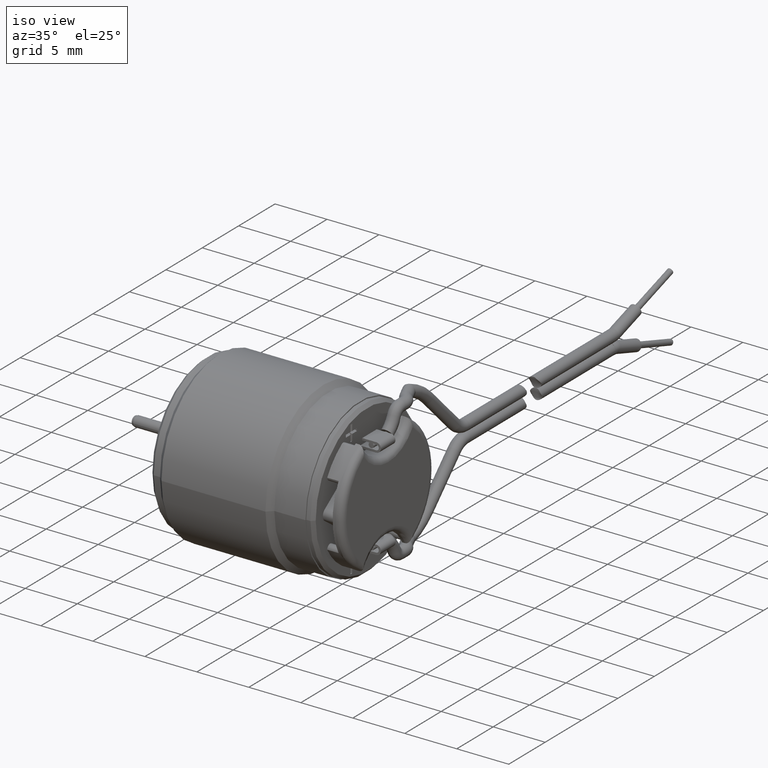
[diagram: clean part render]
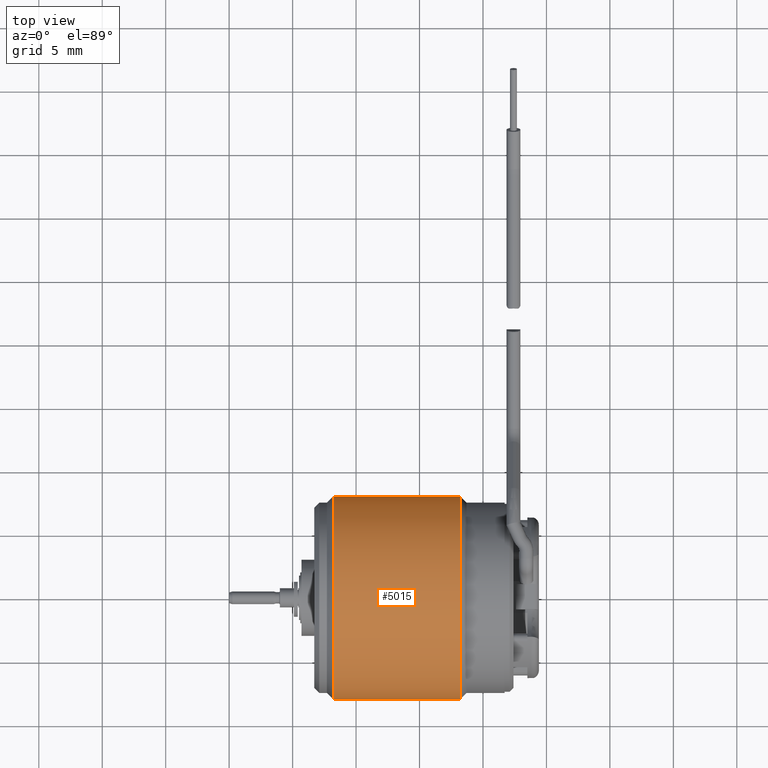
[diagram: tour spotlight — one face highlighted and labeled with its STEP entity id]
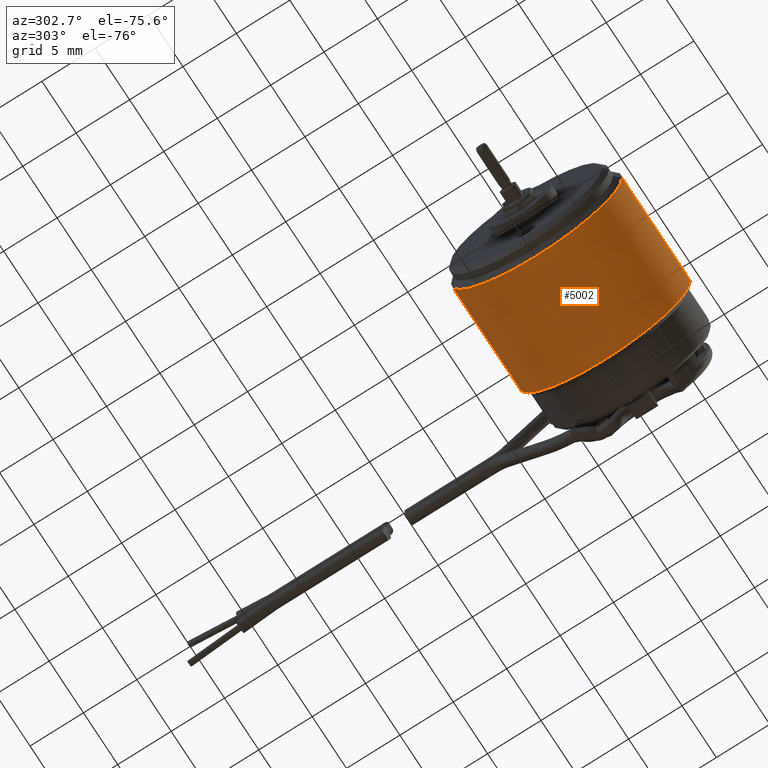
[diagram: tour spotlight — one face highlighted and labeled with its STEP entity id]
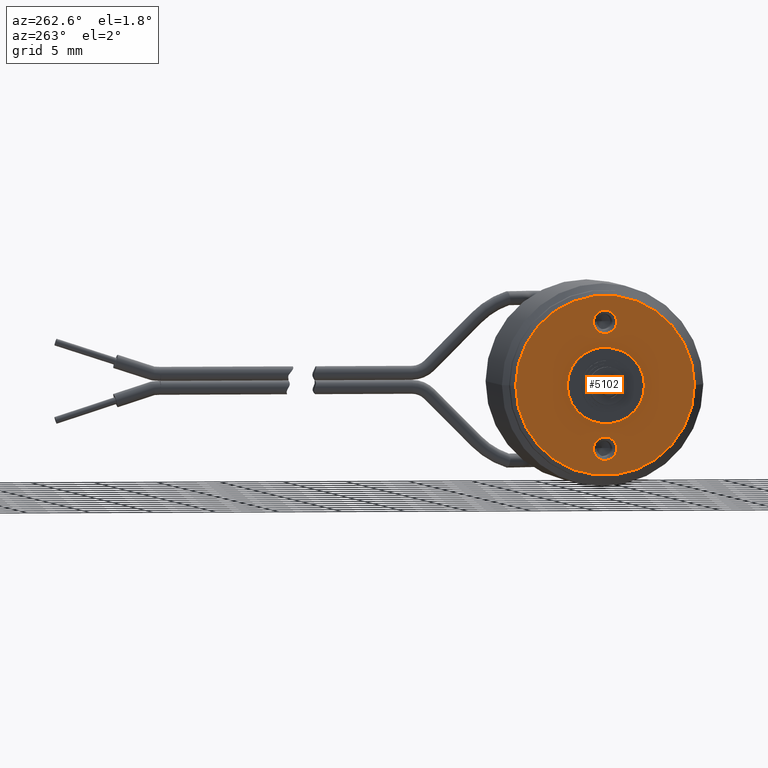
[diagram: tour spotlight — one face highlighted and labeled with its STEP entity id]
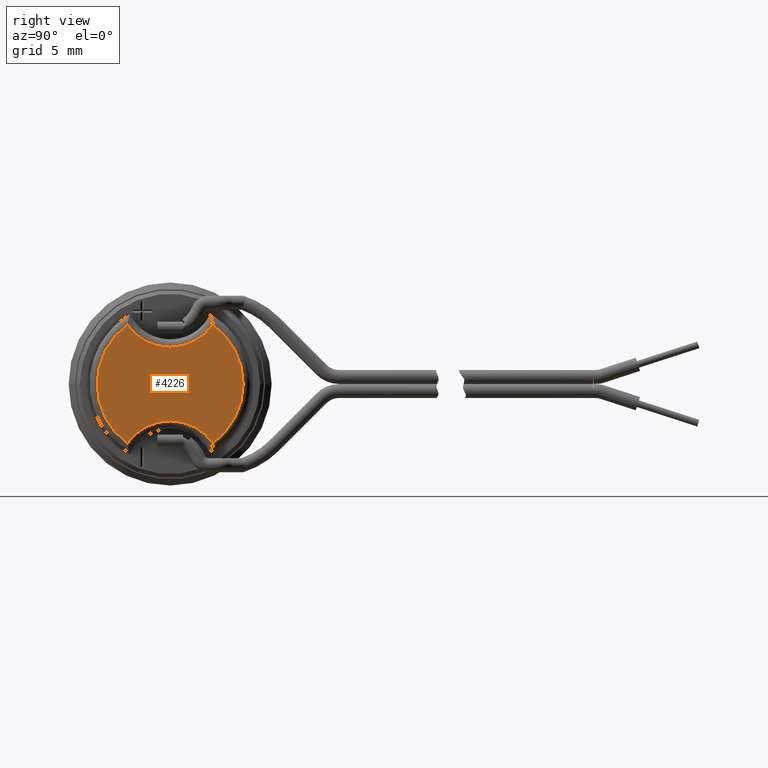
[diagram: tour spotlight — one face highlighted and labeled with its STEP entity id]
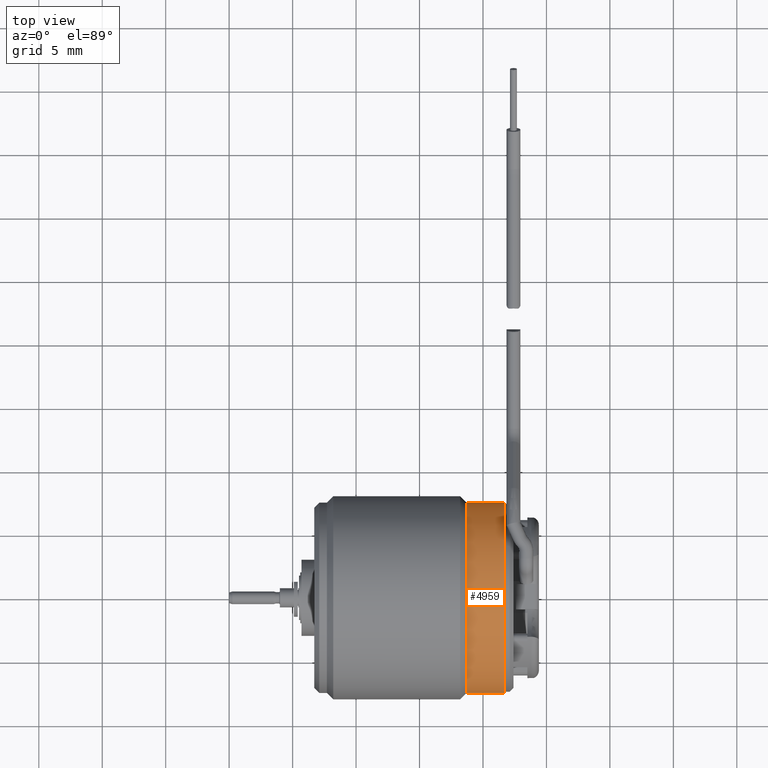
[diagram: tour spotlight — one face highlighted and labeled with its STEP entity id]
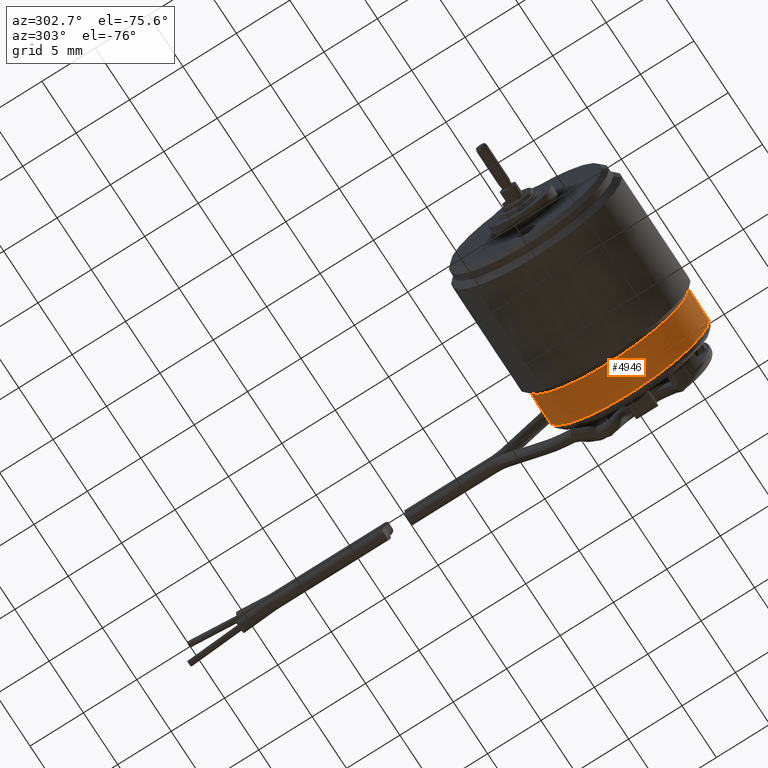
[diagram: tour spotlight — one face highlighted and labeled with its STEP entity id]
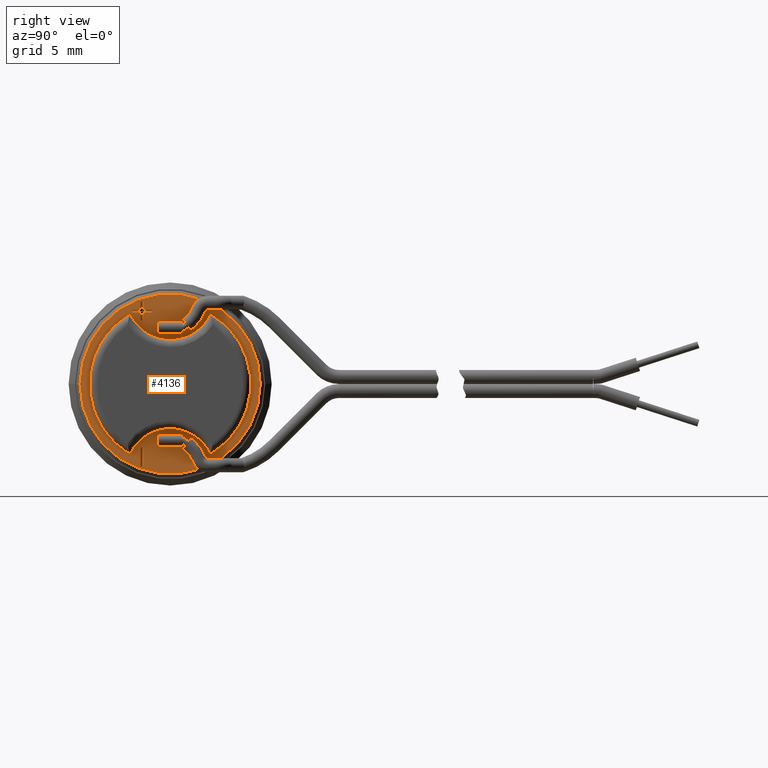
[diagram: tour spotlight — one face highlighted and labeled with its STEP entity id]
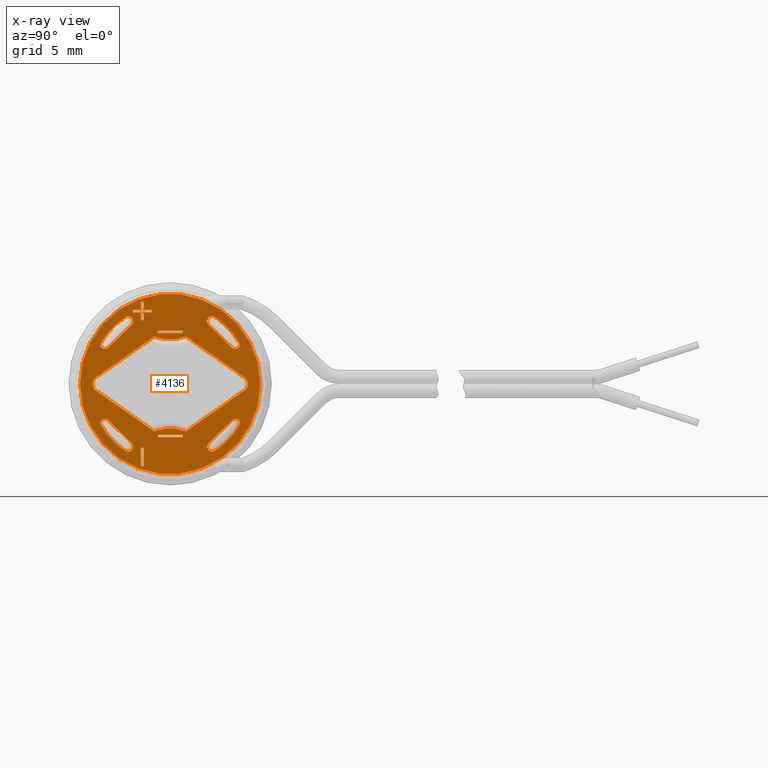
[diagram: x-ray of the same camera — body ghosted, this tour face saturated]
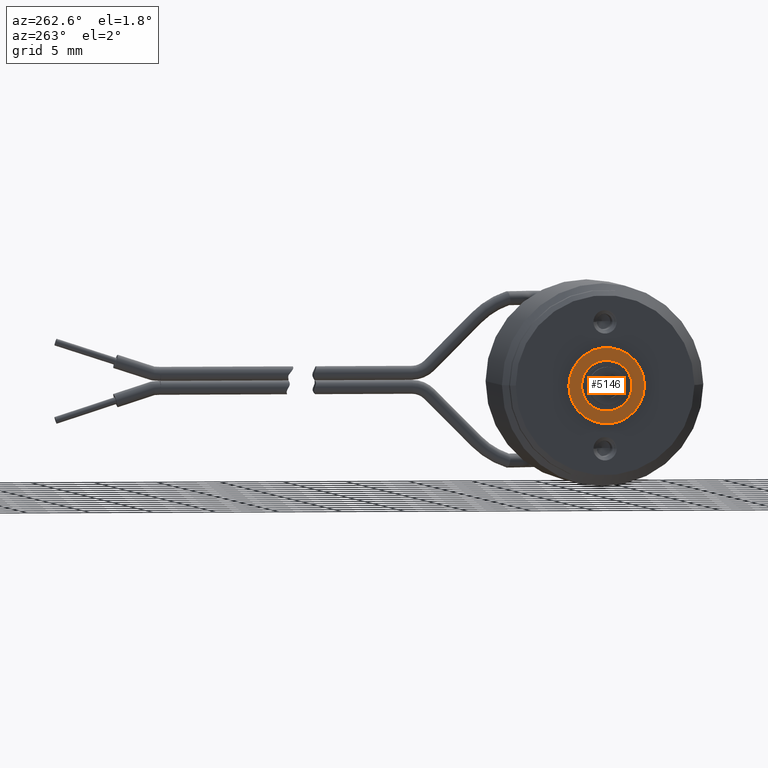
[diagram: tour spotlight — one face highlighted and labeled with its STEP entity id]
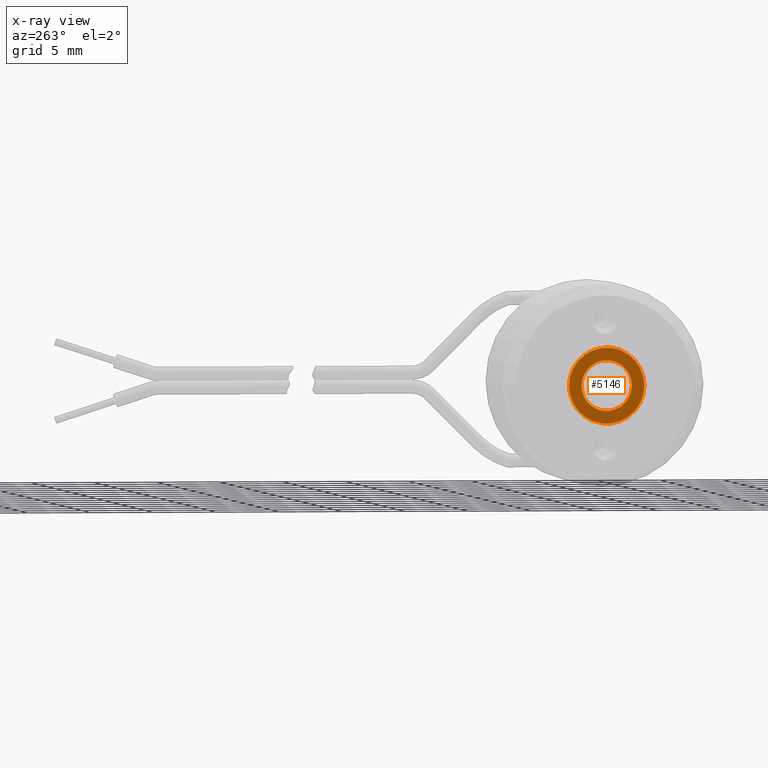
[diagram: x-ray of the same camera — body ghosted, this tour face saturated]
A machine part: a face-by-face anatomy tour. The part has 254 B-rep faces; the first image is the clean iso view, then the 8 largest visible faces are spotlighted one at a time (largest first), each with its STEP entity span.

Face 1 — top view, entity #5015. In plain terms, the highlighted cylindrical surface (partial cylindrical patch) has radius 8 mm, axis along (-1, 0, 0).
Definition (entity closure, byte-faithful):
#1562=DIRECTION('',(-1.E0,0.E0,0.E0));
#1563=VECTOR('',#1562,1.E1);
#1564=CARTESIAN_POINT('',(1.82E1,8.E0,0.E0));
#1565=LINE('',#1564,#1563);
#1566=CARTESIAN_POINT('',(1.82E1,0.E0,0.E0));
#1567=DIRECTION('',(1.E0,0.E0,0.E0));
#1568=DIRECTION('',(0.E0,1.E0,0.E0));
#1569=AXIS2_PLACEMENT_3D('',#1566,#1567,#1568);
#1571=DIRECTION('',(-1.E0,0.E0,0.E0));
#1572=VECTOR('',#1571,1.E1);
#1573=CARTESIAN_POINT('',(1.82E1,-8.E0,0.E0));
#1574=LINE('',#1573,#1572);
#1579=CARTESIAN_POINT('',(8.2E0,0.E0,0.E0));
#1580=DIRECTION('',(1.E0,0.E0,0.E0));
#1581=DIRECTION('',(0.E0,1.E0,0.E0));
#1582=AXIS2_PLACEMENT_3D('',#1579,#1580,#1581);
#2541=CARTESIAN_POINT('',(1.82E1,8.E0,0.E0));
#2542=VERTEX_POINT('',#2541);
#2543=CARTESIAN_POINT('',(8.2E0,8.E0,0.E0));
#2544=VERTEX_POINT('',#2543);
#2571=CARTESIAN_POINT('',(1.82E1,-8.E0,0.E0));
#2572=VERTEX_POINT('',#2571);
#2573=CARTESIAN_POINT('',(8.2E0,-8.E0,0.E0));
#2574=VERTEX_POINT('',#2573);
#5003=CARTESIAN_POINT('',(2.562E1,0.E0,0.E0));
#5004=DIRECTION('',(-1.E0,0.E0,0.E0));
#5005=DIRECTION('',(0.E0,1.E0,0.E0));
#5006=AXIS2_PLACEMENT_3D('',#5003,#5004,#5005);
#5007=CYLINDRICAL_SURFACE('',#5006,8.E0);
#5008=ORIENTED_EDGE('',*,*,#4993,.F.);
#5009=ORIENTED_EDGE('',*,*,#4970,.T.);
#5010=ORIENTED_EDGE('',*,*,#4997,.T.);
#5012=ORIENTED_EDGE('',*,*,#5011,.F.);
#5013=EDGE_LOOP('',(#5008,#5009,#5010,#5012));
#5014=FACE_OUTER_BOUND('',#5013,.F.);
#5015=ADVANCED_FACE('',(#5014),#5007,.T.);
#1570=CIRCLE('',#1569,8.E0);
#1583=CIRCLE('',#1582,8.E0);
#4970=EDGE_CURVE('',#2542,#2572,#1570,.T.);
#4993=EDGE_CURVE('',#2542,#2544,#1565,.T.);
#4997=EDGE_CURVE('',#2572,#2574,#1574,.T.);
#5011=EDGE_CURVE('',#2544,#2574,#1583,.T.);

Face 2 — auxiliary view, entity #5002. In plain terms, the highlighted cylindrical surface (partial cylindrical patch) has radius 8 mm, axis along (-1, 0, 0).
Definition (entity closure, byte-faithful):
#1557=CARTESIAN_POINT('',(1.82E1,0.E0,0.E0));
#1558=DIRECTION('',(-1.E0,0.E0,0.E0));
#1559=DIRECTION('',(0.E0,1.E0,0.E0));
#1560=AXIS2_PLACEMENT_3D('',#1557,#1558,#1559);
#1562=DIRECTION('',(-1.E0,0.E0,0.E0));
#1563=VECTOR('',#1562,1.E1);
#1564=CARTESIAN_POINT('',(1.82E1,8.E0,0.E0));
#1565=LINE('',#1564,#1563);
#1571=DIRECTION('',(-1.E0,0.E0,0.E0));
#1572=VECTOR('',#1571,1.E1);
#1573=CARTESIAN_POINT('',(1.82E1,-8.E0,0.E0));
#1574=LINE('',#1573,#1572);
#1588=CARTESIAN_POINT('',(8.2E0,0.E0,0.E0));
#1589=DIRECTION('',(-1.E0,0.E0,0.E0));
#1590=DIRECTION('',(0.E0,1.E0,0.E0));
#1591=AXIS2_PLACEMENT_3D('',#1588,#1589,#1590);
#2541=CARTESIAN_POINT('',(1.82E1,8.E0,0.E0));
#2542=VERTEX_POINT('',#2541);
#2543=CARTESIAN_POINT('',(8.2E0,8.E0,0.E0));
#2544=VERTEX_POINT('',#2543);
#2571=CARTESIAN_POINT('',(1.82E1,-8.E0,0.E0));
#2572=VERTEX_POINT('',#2571);
#2573=CARTESIAN_POINT('',(8.2E0,-8.E0,0.E0));
#2574=VERTEX_POINT('',#2573);
#4988=CARTESIAN_POINT('',(2.562E1,0.E0,0.E0));
#4989=DIRECTION('',(-1.E0,0.E0,0.E0));
#4990=DIRECTION('',(0.E0,1.E0,0.E0));
#4991=AXIS2_PLACEMENT_3D('',#4988,#4989,#4990);
#4992=CYLINDRICAL_SURFACE('',#4991,8.E0);
#4994=ORIENTED_EDGE('',*,*,#4993,.T.);
#4996=ORIENTED_EDGE('',*,*,#4995,.T.);
#4998=ORIENTED_EDGE('',*,*,#4997,.F.);
#4999=ORIENTED_EDGE('',*,*,#4981,.F.);
#5000=EDGE_LOOP('',(#4994,#4996,#4998,#4999));
#5001=FACE_OUTER_BOUND('',#5000,.F.);
#5002=ADVANCED_FACE('',(#5001),#4992,.T.);
#1561=CIRCLE('',#1560,8.E0);
#1592=CIRCLE('',#1591,8.E0);
#4981=EDGE_CURVE('',#2542,#2572,#1561,.T.);
#4993=EDGE_CURVE('',#2542,#2544,#1565,.T.);
#4995=EDGE_CURVE('',#2544,#2574,#1592,.T.);
#4997=EDGE_CURVE('',#2572,#2574,#1574,.T.);

Face 3 — auxiliary view, entity #5102. In plain terms, the highlighted planar face has unit normal (-1, 0, 0).
Definition (entity closure, byte-faithful):
#1607=CARTESIAN_POINT('',(6.7E0,1.644997995676E-14,0.E0));
#1608=DIRECTION('',(-1.E0,0.E0,0.E0));
#1609=DIRECTION('',(0.E0,-1.E0,0.E0));
#1610=AXIS2_PLACEMENT_3D('',#1607,#1608,#1609);
#1612=CARTESIAN_POINT('',(6.7E0,1.644997995676E-14,-1.325657751700E-14));
#1613=DIRECTION('',(-1.E0,0.E0,0.E0));
#1614=DIRECTION('',(0.E0,1.E0,0.E0));
#1615=AXIS2_PLACEMENT_3D('',#1612,#1613,#1614);
#1617=CARTESIAN_POINT('',(6.7E0,0.E0,5.E0));
#1618=DIRECTION('',(1.E0,0.E0,0.E0));
#1619=DIRECTION('',(0.E0,1.E0,0.E0));
#1620=AXIS2_PLACEMENT_3D('',#1617,#1618,#1619);
#1622=CARTESIAN_POINT('',(6.7E0,0.E0,5.E0));
#1623=DIRECTION('',(1.E0,0.E0,0.E0));
#1624=DIRECTION('',(0.E0,-1.E0,0.E0));
#1625=AXIS2_PLACEMENT_3D('',#1622,#1623,#1624);
#1627=CARTESIAN_POINT('',(6.7E0,0.E0,-5.E0));
#1628=DIRECTION('',(1.E0,0.E0,0.E0));
#1629=DIRECTION('',(0.E0,-1.E0,0.E0));
#1630=AXIS2_PLACEMENT_3D('',#1627,#1628,#1629);
#1632=CARTESIAN_POINT('',(6.7E0,0.E0,-5.E0));
#1633=DIRECTION('',(1.E0,0.E0,0.E0));
#1634=DIRECTION('',(0.E0,1.E0,0.E0));
#1635=AXIS2_PLACEMENT_3D('',#1632,#1633,#1634);
#1637=CARTESIAN_POINT('',(6.7E0,0.E0,0.E0));
#1638=DIRECTION('',(-1.E0,0.E0,0.E0));
#1639=DIRECTION('',(0.E0,1.E0,0.E0));
#1640=AXIS2_PLACEMENT_3D('',#1637,#1638,#1639);
#1646=CARTESIAN_POINT('',(6.7E0,0.E0,0.E0));
#1647=DIRECTION('',(1.E0,0.E0,0.E0));
#1648=DIRECTION('',(0.E0,1.E0,0.E0));
#1649=AXIS2_PLACEMENT_3D('',#1646,#1647,#1648);
#2547=CARTESIAN_POINT('',(6.7E0,3.E0,0.E0));
#2549=VERTEX_POINT('',#2547);
#2577=CARTESIAN_POINT('',(6.7E0,-3.E0,0.E0));
#2579=VERTEX_POINT('',#2577);
#2965=CARTESIAN_POINT('',(6.7E0,-7.1E0,0.E0));
#2966=CARTESIAN_POINT('',(6.7E0,7.1E0,0.E0));
#2967=VERTEX_POINT('',#2965);
#2968=VERTEX_POINT('',#2966);
#3083=CARTESIAN_POINT('',(6.7E0,9.25E-1,5.E0));
#3084=CARTESIAN_POINT('',(6.7E0,-9.25E-1,5.E0));
#3085=VERTEX_POINT('',#3083);
#3086=VERTEX_POINT('',#3084);
#3097=CARTESIAN_POINT('',(6.7E0,-9.25E-1,-5.E0));
#3098=CARTESIAN_POINT('',(6.7E0,9.25E-1,-5.E0));
#3099=VERTEX_POINT('',#3097);
#3100=VERTEX_POINT('',#3098);
#5074=CARTESIAN_POINT('',(6.7E0,0.E0,0.E0));
#5075=DIRECTION('',(-1.E0,0.E0,0.E0));
#5076=DIRECTION('',(0.E0,1.E0,0.E0));
#5077=AXIS2_PLACEMENT_3D('',#5074,#5075,#5076);
#5078=PLANE('',#5077);
#5080=ORIENTED_EDGE('',*,*,#5079,.F.);
#5081=ORIENTED_EDGE('',*,*,#5064,.F.);
#5082=EDGE_LOOP('',(#5080,#5081));
#5083=FACE_OUTER_BOUND('',#5082,.F.);
#5085=ORIENTED_EDGE('',*,*,#5084,.T.);
#5087=ORIENTED_EDGE('',*,*,#5086,.F.);
#5088=EDGE_LOOP('',(#5085,#5087));
#5089=FACE_BOUND('',#5088,.F.);
#5091=ORIENTED_EDGE('',*,*,#5090,.F.);
#5093=ORIENTED_EDGE('',*,*,#5092,.F.);
#5094=EDGE_LOOP('',(#5091,#5093));
#5095=FACE_BOUND('',#5094,.F.);
#5097=ORIENTED_EDGE('',*,*,#5096,.F.);
#5099=ORIENTED_EDGE('',*,*,#5098,.F.);
#5100=EDGE_LOOP('',(#5097,#5099));
#5101=FACE_BOUND('',#5100,.F.);
#5102=ADVANCED_FACE('',(#5083,#5089,#5095,#5101),#5078,.T.);
#1611=CIRCLE('',#1610,7.1E0);
#1616=CIRCLE('',#1615,7.1E0);
#1621=CIRCLE('',#1620,9.25E-1);
#1626=CIRCLE('',#1625,9.25E-1);
#1631=CIRCLE('',#1630,9.25E-1);
#1636=CIRCLE('',#1635,9.25E-1);
#1641=CIRCLE('',#1640,3.E0);
#1650=CIRCLE('',#1649,3.E0);
#5064=EDGE_CURVE('',#2968,#2967,#1616,.T.);
#5079=EDGE_CURVE('',#2967,#2968,#1611,.T.);
#5084=EDGE_CURVE('',#2549,#2579,#1641,.T.);
#5086=EDGE_CURVE('',#2549,#2579,#1650,.T.);
#5090=EDGE_CURVE('',#3085,#3086,#1621,.T.);
#5092=EDGE_CURVE('',#3086,#3085,#1626,.T.);
#5096=EDGE_CURVE('',#3099,#3100,#1631,.T.);
#5098=EDGE_CURVE('',#3100,#3099,#1636,.T.);

Face 4 — right view, entity #4226. In plain terms, the highlighted planar face has unit normal (-1, 0, 0).
Definition (entity closure, byte-faithful):
#1139=CARTESIAN_POINT('',(2.44E1,0.E0,7.E0));
#1140=DIRECTION('',(-1.E0,0.E0,0.E0));
#1141=DIRECTION('',(0.E0,8.212879198958E-1,-5.705139372822E-1));
#1142=AXIS2_PLACEMENT_3D('',#1139,#1140,#1141);
#1144=CARTESIAN_POINT('',(2.44E1,0.E0,0.E0));
#1145=DIRECTION('',(-1.E0,0.E0,0.E0));
#1146=DIRECTION('',(0.E0,5.856139950561E-1,8.105900621118E-1));
#1147=AXIS2_PLACEMENT_3D('',#1144,#1145,#1146);
#1149=CARTESIAN_POINT('',(2.44E1,0.E0,-7.E0));
#1150=DIRECTION('',(-1.E0,0.E0,0.E0));
#1151=DIRECTION('',(0.E0,-8.212879198958E-1,5.705139372822E-1));
#1152=AXIS2_PLACEMENT_3D('',#1149,#1150,#1151);
#1154=CARTESIAN_POINT('',(2.44E1,0.E0,0.E0));
#1155=DIRECTION('',(-1.E0,0.E0,0.E0));
#1156=DIRECTION('',(0.E0,-5.856139950561E-1,-8.105900621118E-1));
#1157=AXIS2_PLACEMENT_3D('',#1154,#1155,#1156);
#2749=CARTESIAN_POINT('',(2.44E1,3.367280471573E0,4.660892857143E0));
#2750=CARTESIAN_POINT('',(2.44E1,-3.367280471573E0,4.660892857143E0));
#2751=VERTEX_POINT('',#2749);
#2752=VERTEX_POINT('',#2750);
#2757=CARTESIAN_POINT('',(2.44E1,3.367280471573E0,-4.660892857143E0));
#2758=VERTEX_POINT('',#2757);
#2763=CARTESIAN_POINT('',(2.44E1,-3.367280471573E0,-4.660892857143E0));
#2764=VERTEX_POINT('',#2763);
#4212=CARTESIAN_POINT('',(2.44E1,0.E0,0.E0));
#4213=DIRECTION('',(-1.E0,0.E0,0.E0));
#4214=DIRECTION('',(0.E0,1.E0,0.E0));
#4215=AXIS2_PLACEMENT_3D('',#4212,#4213,#4214);
#4216=PLANE('',#4215);
#4218=ORIENTED_EDGE('',*,*,#4217,.F.);
#4219=ORIENTED_EDGE('',*,*,#4202,.T.);
#4221=ORIENTED_EDGE('',*,*,#4220,.F.);
#4223=ORIENTED_EDGE('',*,*,#4222,.T.);
#4224=EDGE_LOOP('',(#4218,#4219,#4221,#4223));
#4225=FACE_OUTER_BOUND('',#4224,.F.);
#4226=ADVANCED_FACE('',(#4225),#4216,.F.);
#1143=CIRCLE('',#1142,4.1E0);
#1148=CIRCLE('',#1147,5.75E0);
#1153=CIRCLE('',#1152,4.1E0);
#1158=CIRCLE('',#1157,5.75E0);
#4202=EDGE_CURVE('',#2751,#2758,#1148,.T.);
#4217=EDGE_CURVE('',#2751,#2752,#1143,.T.);
#4220=EDGE_CURVE('',#2764,#2758,#1153,.T.);
#4222=EDGE_CURVE('',#2764,#2752,#1158,.T.);

Face 5 — top view, entity #4959. In plain terms, the highlighted cylindrical surface (partial cylindrical patch) has radius 7.5 mm, axis along (-1, 0, 0).
Definition (entity closure, byte-faithful):
#1526=DIRECTION('',(-1.E0,0.E0,0.E0));
#1527=VECTOR('',#1526,3.E0);
#1528=CARTESIAN_POINT('',(2.17E1,7.5E0,0.E0));
#1529=LINE('',#1528,#1527);
#1530=CARTESIAN_POINT('',(2.17E1,0.E0,0.E0));
#1531=DIRECTION('',(1.E0,0.E0,0.E0));
#1532=DIRECTION('',(0.E0,1.E0,0.E0));
#1533=AXIS2_PLACEMENT_3D('',#1530,#1531,#1532);
#1535=DIRECTION('',(-1.E0,0.E0,0.E0));
#1536=VECTOR('',#1535,3.E0);
#1537=CARTESIAN_POINT('',(2.17E1,-7.5E0,0.E0));
#1538=LINE('',#1537,#1536);
#1543=CARTESIAN_POINT('',(1.87E1,0.E0,0.E0));
#1544=DIRECTION('',(1.E0,0.E0,0.E0));
#1545=DIRECTION('',(0.E0,1.E0,0.E0));
#1546=AXIS2_PLACEMENT_3D('',#1543,#1544,#1545);
#2537=CARTESIAN_POINT('',(2.17E1,7.5E0,0.E0));
#2538=CARTESIAN_POINT('',(1.87E1,7.5E0,0.E0));
#2539=VERTEX_POINT('',#2537);
#2540=VERTEX_POINT('',#2538);
#2567=CARTESIAN_POINT('',(2.17E1,-7.5E0,0.E0));
#2568=CARTESIAN_POINT('',(1.87E1,-7.5E0,0.E0));
#2569=VERTEX_POINT('',#2567);
#2570=VERTEX_POINT('',#2568);
#4947=CARTESIAN_POINT('',(2.562E1,0.E0,0.E0));
#4948=DIRECTION('',(-1.E0,0.E0,0.E0));
#4949=DIRECTION('',(0.E0,1.E0,0.E0));
#4950=AXIS2_PLACEMENT_3D('',#4947,#4948,#4949);
#4951=CYLINDRICAL_SURFACE('',#4950,7.5E0);
#4952=ORIENTED_EDGE('',*,*,#4937,.F.);
#4953=ORIENTED_EDGE('',*,*,#4923,.T.);
#4954=ORIENTED_EDGE('',*,*,#4941,.T.);
#4956=ORIENTED_EDGE('',*,*,#4955,.F.);
#4957=EDGE_LOOP('',(#4952,#4953,#4954,#4956));
#4958=FACE_OUTER_BOUND('',#4957,.F.);
#4959=ADVANCED_FACE('',(#4958),#4951,.T.);
#1534=CIRCLE('',#1533,7.5E0);
#1547=CIRCLE('',#1546,7.5E0);
#4923=EDGE_CURVE('',#2539,#2569,#1534,.T.);
#4937=EDGE_CURVE('',#2539,#2540,#1529,.T.);
#4941=EDGE_CURVE('',#2569,#2570,#1538,.T.);
#4955=EDGE_CURVE('',#2540,#2570,#1547,.T.);

Face 6 — auxiliary view, entity #4946. In plain terms, the highlighted cylindrical surface (partial cylindrical patch) has radius 7.5 mm, axis along (-1, 0, 0).
Definition (entity closure, byte-faithful):
#1521=CARTESIAN_POINT('',(2.17E1,0.E0,0.E0));
#1522=DIRECTION('',(-1.E0,0.E0,0.E0));
#1523=DIRECTION('',(0.E0,1.E0,0.E0));
#1524=AXIS2_PLACEMENT_3D('',#1521,#1522,#1523);
#1526=DIRECTION('',(-1.E0,0.E0,0.E0));
#1527=VECTOR('',#1526,3.E0);
#1528=CARTESIAN_POINT('',(2.17E1,7.5E0,0.E0));
#1529=LINE('',#1528,#1527);
#1535=DIRECTION('',(-1.E0,0.E0,0.E0));
#1536=VECTOR('',#1535,3.E0);
#1537=CARTESIAN_POINT('',(2.17E1,-7.5E0,0.E0));
#1538=LINE('',#1537,#1536);
#1552=CARTESIAN_POINT('',(1.87E1,0.E0,0.E0));
#1553=DIRECTION('',(-1.E0,0.E0,0.E0));
#1554=DIRECTION('',(0.E0,1.E0,0.E0));
#1555=AXIS2_PLACEMENT_3D('',#1552,#1553,#1554);
#2537=CARTESIAN_POINT('',(2.17E1,7.5E0,0.E0));
#2538=CARTESIAN_POINT('',(1.87E1,7.5E0,0.E0));
#2539=VERTEX_POINT('',#2537);
#2540=VERTEX_POINT('',#2538);
#2567=CARTESIAN_POINT('',(2.17E1,-7.5E0,0.E0));
#2568=CARTESIAN_POINT('',(1.87E1,-7.5E0,0.E0));
#2569=VERTEX_POINT('',#2567);
#2570=VERTEX_POINT('',#2568);
#4932=CARTESIAN_POINT('',(2.562E1,0.E0,0.E0));
#4933=DIRECTION('',(-1.E0,0.E0,0.E0));
#4934=DIRECTION('',(0.E0,1.E0,0.E0));
#4935=AXIS2_PLACEMENT_3D('',#4932,#4933,#4934);
#4936=CYLINDRICAL_SURFACE('',#4935,7.5E0);
#4938=ORIENTED_EDGE('',*,*,#4937,.T.);
#4940=ORIENTED_EDGE('',*,*,#4939,.T.);
#4942=ORIENTED_EDGE('',*,*,#4941,.F.);
#4943=ORIENTED_EDGE('',*,*,#4921,.F.);
#4944=EDGE_LOOP('',(#4938,#4940,#4942,#4943));
#4945=FACE_OUTER_BOUND('',#4944,.F.);
#4946=ADVANCED_FACE('',(#4945),#4936,.T.);
#1525=CIRCLE('',#1524,7.5E0);
#1556=CIRCLE('',#1555,7.5E0);
#4921=EDGE_CURVE('',#2539,#2569,#1525,.T.);
#4937=EDGE_CURVE('',#2539,#2540,#1529,.T.);
#4939=EDGE_CURVE('',#2540,#2570,#1556,.T.);
#4941=EDGE_CURVE('',#2569,#2570,#1538,.T.);

Face 7 — right view, entity #4136. An x-ray twin of the same camera follows (body ghosted, this face saturated) — the face is partly hidden behind the body. In plain terms, the highlighted planar face has unit normal (-1, 0, 0).
Definition (entity closure, byte-faithful):
#821=CARTESIAN_POINT('',(2.24E1,-5.123975197374E0,3.151421470596E0));
#822=DIRECTION('',(-1.E0,0.E0,0.E0));
#823=DIRECTION('',(0.E0,4.675585654280E-1,-8.839620964130E-1));
#824=AXIS2_PLACEMENT_3D('',#821,#822,#823);
#826=DIRECTION('',(0.E0,-7.152049734823E-1,-6.989147629763E-1));
#827=VECTOR('',#826,2.660550737073E0);
#828=CARTESIAN_POINT('',(2.24E1,-3.034112651846E0,4.657334819819E0));
#829=LINE('',#828,#827);
#830=CARTESIAN_POINT('',(2.24E1,-3.313678557037E0,4.943416809211E0));
#831=DIRECTION('',(1.E0,0.E0,0.E0));
#832=DIRECTION('',(0.E0,6.989147629763E-1,-7.152049734823E-1));
#833=AXIS2_PLACEMENT_3D('',#830,#831,#832);
#835=CARTESIAN_POINT('',(2.24E1,-3.313678557037E0,-4.943416809211E0));
#836=DIRECTION('',(1.E0,0.E0,0.E0));
#837=DIRECTION('',(0.E0,-4.860715638850E-1,-8.739190092808E-1));
#838=AXIS2_PLACEMENT_3D('',#835,#836,#837);
#840=DIRECTION('',(0.E0,7.152049734823E-1,-6.989147629763E-1));
#841=VECTOR('',#840,2.660550737073E0);
#842=CARTESIAN_POINT('',(2.24E1,-4.936951771203E0,-2.797836632031E0));
#843=LINE('',#842,#841);
#844=CARTESIAN_POINT('',(2.24E1,-5.123975197374E0,-3.151421470596E0));
#845=DIRECTION('',(-1.E0,0.E0,0.E0));
#846=DIRECTION('',(0.E0,-9.988907983472E-1,4.708686629227E-2));
#847=AXIS2_PLACEMENT_3D('',#844,#845,#846);
#849=CARTESIAN_POINT('',(2.24E1,3.313678557037E0,4.943416809211E0));
#850=DIRECTION('',(1.E0,0.E0,0.E0));
#851=DIRECTION('',(0.E0,4.860715638850E-1,8.739190092808E-1));
#852=AXIS2_PLACEMENT_3D('',#849,#850,#851);
#854=DIRECTION('',(0.E0,-7.152049734823E-1,6.989147629763E-1));
#855=VECTOR('',#854,2.660550737073E0);
#856=CARTESIAN_POINT('',(2.24E1,4.936951771203E0,2.797836632031E0));
#857=LINE('',#856,#855);
#858=CARTESIAN_POINT('',(2.24E1,5.123975197374E0,3.151421470596E0));
#859=DIRECTION('',(-1.E0,0.E0,0.E0));
#860=DIRECTION('',(0.E0,9.988907983472E-1,-4.708686629227E-2));
#861=AXIS2_PLACEMENT_3D('',#858,#859,#860);
#863=CARTESIAN_POINT('',(2.24E1,0.E0,7.E0));
#864=DIRECTION('',(1.E0,0.E0,0.E0));
#865=DIRECTION('',(0.E0,-3.584652434004E-1,-9.335430730684E-1));
#866=AXIS2_PLACEMENT_3D('',#863,#864,#865);
#868=DIRECTION('',(0.E0,8.191520442890E-1,5.735764363510E-1));
#869=VECTOR('',#868,5.618535837156E0);
#870=CARTESIAN_POINT('',(2.24E1,-5.857063468819E0,5.099394812740E-1));
#871=LINE('',#870,#869);
#872=CARTESIAN_POINT('',(2.24E1,-5.5E0,0.E0));
#873=DIRECTION('',(-1.E0,0.E0,0.E0));
#874=DIRECTION('',(0.E0,-5.735764363510E-1,-8.191520442890E-1));
#875=AXIS2_PLACEMENT_3D('',#872,#873,#874);
#877=DIRECTION('',(0.E0,-8.191520442890E-1,5.735764363510E-1));
#878=VECTOR('',#877,5.618535837156E0);
#879=CARTESIAN_POINT('',(2.24E1,-1.254628351901E0,-3.732599244261E0));
#880=LINE('',#879,#878);
#881=CARTESIAN_POINT('',(2.24E1,0.E0,-7.E0));
#882=DIRECTION('',(1.E0,0.E0,0.E0));
#883=DIRECTION('',(0.E0,3.584652434004E-1,9.335430730684E-1));
#884=AXIS2_PLACEMENT_3D('',#881,#882,#883);
#886=DIRECTION('',(0.E0,-8.191520442890E-1,-5.735764363510E-1));
#887=VECTOR('',#886,5.618535837156E0);
#888=CARTESIAN_POINT('',(2.24E1,5.857063468819E0,-5.099394812740E-1));
#889=LINE('',#888,#887);
#890=CARTESIAN_POINT('',(2.24E1,5.5E0,0.E0));
#891=DIRECTION('',(-1.E0,0.E0,0.E0));
#892=DIRECTION('',(0.E0,5.735764363511E-1,8.191520442890E-1));
#893=AXIS2_PLACEMENT_3D('',#890,#891,#892);
#895=DIRECTION('',(0.E0,8.191520442890E-1,-5.735764363510E-1));
#896=VECTOR('',#895,5.618535837156E0);
#897=CARTESIAN_POINT('',(2.24E1,1.254628351901E0,3.732599244261E0));
#898=LINE('',#897,#896);
#899=CARTESIAN_POINT('',(2.24E1,3.313678557037E0,-4.943416809211E0));
#900=DIRECTION('',(1.E0,0.E0,0.E0));
#901=DIRECTION('',(0.E0,-6.989147629763E-1,7.152049734823E-1));
#902=AXIS2_PLACEMENT_3D('',#899,#900,#901);
#904=CARTESIAN_POINT('',(2.24E1,5.123975197374E0,-3.151421470596E0));
#905=DIRECTION('',(-1.E0,0.E0,0.E0));
#906=DIRECTION('',(0.E0,-4.675585654280E-1,8.839620964130E-1));
#907=AXIS2_PLACEMENT_3D('',#904,#905,#906);
#909=DIRECTION('',(0.E0,7.152049734823E-1,6.989147629763E-1));
#910=VECTOR('',#909,2.660550737073E0);
#911=CARTESIAN_POINT('',(2.24E1,3.034112651846E0,-4.657334819819E0));
#912=LINE('',#911,#910);
#913=DIRECTION('',(0.E0,-1.E0,0.E0));
#914=VECTOR('',#913,2.5E-1);
#915=CARTESIAN_POINT('',(2.24E1,-2.075E0,-5.E0));
#916=LINE('',#915,#914);
#917=DIRECTION('',(0.E0,0.E0,1.E0));
#918=VECTOR('',#917,1.5E0);
#919=CARTESIAN_POINT('',(2.24E1,-2.325E0,-6.5E0));
#920=LINE('',#919,#918);
#921=DIRECTION('',(0.E0,-1.E0,0.E0));
#922=VECTOR('',#921,2.5E-1);
#923=CARTESIAN_POINT('',(2.24E1,-2.075E0,-6.5E0));
#924=LINE('',#923,#922);
#925=DIRECTION('',(0.E0,0.E0,1.E0));
#926=VECTOR('',#925,1.5E0);
#927=CARTESIAN_POINT('',(2.24E1,-2.075E0,-6.5E0));
#928=LINE('',#927,#926);
#929=DIRECTION('',(0.E0,0.E0,-1.E0));
#930=VECTOR('',#929,2.E-1);
#931=CARTESIAN_POINT('',(2.24E1,-1.E0,4.2E0));
#932=LINE('',#931,#930);
#933=DIRECTION('',(0.E0,1.E0,0.E0));
#934=VECTOR('',#933,2.E0);
#935=CARTESIAN_POINT('',(2.24E1,-1.E0,4.E0));
#936=LINE('',#935,#934);
#937=DIRECTION('',(0.E0,0.E0,-1.E0));
#938=VECTOR('',#937,2.E-1);
#939=CARTESIAN_POINT('',(2.24E1,1.E0,4.2E0));
#940=LINE('',#939,#938);
#941=DIRECTION('',(0.E0,1.E0,0.E0));
#942=VECTOR('',#941,2.E0);
#943=CARTESIAN_POINT('',(2.24E1,-1.E0,4.2E0));
#944=LINE('',#943,#942);
#945=DIRECTION('',(0.E0,0.E0,-1.E0));
#946=VECTOR('',#945,2.E-1);
#947=CARTESIAN_POINT('',(2.24E1,-1.E0,-4.E0));
#948=LINE('',#947,#946);
#949=DIRECTION('',(0.E0,1.E0,0.E0));
#950=VECTOR('',#949,2.E0);
#951=CARTESIAN_POINT('',(2.24E1,-1.E0,-4.2E0));
#952=LINE('',#951,#950);
#953=DIRECTION('',(0.E0,0.E0,-1.E0));
#954=VECTOR('',#953,2.E-1);
#955=CARTESIAN_POINT('',(2.24E1,1.E0,-4.E0));
#956=LINE('',#955,#954);
#957=DIRECTION('',(0.E0,1.E0,0.E0));
#958=VECTOR('',#957,2.E0);
#959=CARTESIAN_POINT('',(2.24E1,-1.E0,-4.E0));
#960=LINE('',#959,#958);
#961=CARTESIAN_POINT('',(2.24E1,4.350206337300E-14,-1.743976420014E-14));
#962=DIRECTION('',(-1.E0,0.E0,0.E0));
#963=DIRECTION('',(0.E0,1.E0,0.E0));
#964=AXIS2_PLACEMENT_3D('',#961,#962,#963);
#966=CARTESIAN_POINT('',(2.24E1,0.E0,0.E0));
#967=DIRECTION('',(-1.E0,0.E0,0.E0));
#968=DIRECTION('',(0.E0,-1.E0,0.E0));
#969=AXIS2_PLACEMENT_3D('',#966,#967,#968);
#971=DIRECTION('',(0.E0,0.E0,1.E0));
#972=VECTOR('',#971,2.5E-1);
#973=CARTESIAN_POINT('',(2.24E1,-1.45E0,5.625E0));
#974=LINE('',#973,#972);
#975=DIRECTION('',(0.E0,-1.E0,0.E0));
#976=VECTOR('',#975,6.25E-1);
#977=CARTESIAN_POINT('',(2.24E1,-1.45E0,5.875E0));
#978=LINE('',#977,#976);
#979=DIRECTION('',(0.E0,0.E0,-1.E0));
#980=VECTOR('',#979,6.25E-1);
#981=CARTESIAN_POINT('',(2.24E1,-2.075E0,6.5E0));
#982=LINE('',#981,#980);
#983=DIRECTION('',(0.E0,1.E0,0.E0));
#984=VECTOR('',#983,2.5E-1);
#985=CARTESIAN_POINT('',(2.24E1,-2.325E0,6.5E0));
#986=LINE('',#985,#984);
#987=DIRECTION('',(0.E0,0.E0,-1.E0));
#988=VECTOR('',#987,6.25E-1);
#989=CARTESIAN_POINT('',(2.24E1,-2.325E0,6.5E0));
#990=LINE('',#989,#988);
#991=DIRECTION('',(0.E0,-1.E0,0.E0));
#992=VECTOR('',#991,6.25E-1);
#993=CARTESIAN_POINT('',(2.24E1,-2.325E0,5.875E0));
#994=LINE('',#993,#992);
#995=DIRECTION('',(0.E0,0.E0,1.E0));
#996=VECTOR('',#995,2.5E-1);
#997=CARTESIAN_POINT('',(2.24E1,-2.95E0,5.625E0));
#998=LINE('',#997,#996);
#999=DIRECTION('',(0.E0,-1.E0,0.E0));
#1000=VECTOR('',#999,6.25E-1);
#1001=CARTESIAN_POINT('',(2.24E1,-2.325E0,5.625E0));
#1002=LINE('',#1001,#1000);
#1003=DIRECTION('',(0.E0,0.E0,-1.E0));
#1004=VECTOR('',#1003,6.25E-1);
#1005=CARTESIAN_POINT('',(2.24E1,-2.325E0,5.625E0));
#1006=LINE('',#1005,#1004);
#1007=DIRECTION('',(0.E0,1.E0,0.E0));
#1008=VECTOR('',#1007,2.5E-1);
#1009=CARTESIAN_POINT('',(2.24E1,-2.325E0,5.E0));
#1010=LINE('',#1009,#1008);
#1011=DIRECTION('',(0.E0,0.E0,-1.E0));
#1012=VECTOR('',#1011,6.25E-1);
#1013=CARTESIAN_POINT('',(2.24E1,-2.075E0,5.625E0));
#1014=LINE('',#1013,#1012);
#1015=DIRECTION('',(0.E0,-1.E0,0.E0));
#1016=VECTOR('',#1015,6.25E-1);
#1017=CARTESIAN_POINT('',(2.24E1,-1.45E0,5.625E0));
#1018=LINE('',#1017,#1016);
#1037=CARTESIAN_POINT('',(2.24E1,0.E0,0.E0));
#1038=DIRECTION('',(-1.E0,0.E0,0.E0));
#1039=DIRECTION('',(0.E0,5.524578240301E-1,8.335408524289E-1));
#1040=AXIS2_PLACEMENT_3D('',#1037,#1038,#1039);
#1055=CARTESIAN_POINT('',(2.24E1,0.E0,0.E0));
#1056=DIRECTION('',(-1.E0,0.E0,0.E0));
#1057=DIRECTION('',(0.E0,8.698474829470E-1,-4.933207439494E-1));
#1058=AXIS2_PLACEMENT_3D('',#1055,#1056,#1057);
#1091=CARTESIAN_POINT('',(2.24E1,0.E0,0.E0));
#1092=DIRECTION('',(-1.E0,0.E0,0.E0));
#1093=DIRECTION('',(0.E0,-5.524578240301E-1,-8.335408524289E-1));
#1094=AXIS2_PLACEMENT_3D('',#1091,#1092,#1093);
#1109=CARTESIAN_POINT('',(2.24E1,0.E0,0.E0));
#1110=DIRECTION('',(-1.E0,0.E0,0.E0));
#1111=DIRECTION('',(0.E0,-8.698474829470E-1,4.933207439494E-1));
#1112=AXIS2_PLACEMENT_3D('',#1109,#1110,#1111);
#2641=CARTESIAN_POINT('',(2.24E1,4.936951771203E0,2.797836632031E0));
#2642=CARTESIAN_POINT('',(2.24E1,3.034112651846E0,4.657334819819E0));
#2643=VERTEX_POINT('',#2641);
#2644=VERTEX_POINT('',#2642);
#2649=CARTESIAN_POINT('',(2.24E1,5.523531516713E0,3.132586724079E0));
#2651=VERTEX_POINT('',#2649);
#2653=CARTESIAN_POINT('',(2.24E1,3.508107182591E0,5.292984412924E0));
#2654=VERTEX_POINT('',#2653);
#2655=CARTESIAN_POINT('',(2.24E1,5.523531516713E0,-3.132586724079E0));
#2656=CARTESIAN_POINT('',(2.24E1,3.508107182591E0,-5.292984412924E0));
#2657=VERTEX_POINT('',#2655);
#2658=VERTEX_POINT('',#2656);
#2661=CARTESIAN_POINT('',(2.24E1,-1.254628351901E0,3.732599244261E0));
#2662=CARTESIAN_POINT('',(2.24E1,1.254628351901E0,3.732599244261E0));
#2663=VERTEX_POINT('',#2661);
#2664=VERTEX_POINT('',#2662);
#2685=CARTESIAN_POINT('',(2.24E1,3.034112651846E0,-4.657334819819E0));
#2686=CARTESIAN_POINT('',(2.24E1,4.936951771203E0,-2.797836632031E0));
#2687=VERTEX_POINT('',#2685);
#2688=VERTEX_POINT('',#2686);
#2689=CARTESIAN_POINT('',(2.24E1,-3.034112651846E0,4.657334819819E0));
#2690=CARTESIAN_POINT('',(2.24E1,-4.936951771203E0,2.797836632031E0));
#2691=VERTEX_POINT('',#2689);
#2692=VERTEX_POINT('',#2690);
#2693=CARTESIAN_POINT('',(2.24E1,-4.936951771203E0,-2.797836632031E0));
#2694=CARTESIAN_POINT('',(2.24E1,-3.034112651846E0,-4.657334819819E0));
#2695=VERTEX_POINT('',#2693);
#2696=VERTEX_POINT('',#2694);
#2697=CARTESIAN_POINT('',(2.24E1,5.857063468819E0,5.099394812740E-1));
#2698=CARTESIAN_POINT('',(2.24E1,5.857063468819E0,-5.099394812740E-1));
#2699=VERTEX_POINT('',#2697);
#2700=VERTEX_POINT('',#2698);
#2701=CARTESIAN_POINT('',(2.24E1,-5.857063468819E0,-5.099394812740E-1));
#2702=CARTESIAN_POINT('',(2.24E1,-5.857063468819E0,5.099394812740E-1));
#2703=VERTEX_POINT('',#2701);
#2704=VERTEX_POINT('',#2702);
#2723=CARTESIAN_POINT('',(2.24E1,-3.508107182591E0,5.292984412924E0));
#2724=VERTEX_POINT('',#2723);
#2725=CARTESIAN_POINT('',(2.24E1,-5.523531516713E0,3.132586724079E0));
#2726=VERTEX_POINT('',#2725);
#2727=CARTESIAN_POINT('',(2.24E1,-3.508107182591E0,-5.292984412924E0));
#2728=VERTEX_POINT('',#2727);
#2729=CARTESIAN_POINT('',(2.24E1,-5.523531516713E0,-3.132586724079E0));
#2730=VERTEX_POINT('',#2729);
#2739=CARTESIAN_POINT('',(2.24E1,1.254628351901E0,-3.732599244261E0));
#2740=VERTEX_POINT('',#2739);
#2741=CARTESIAN_POINT('',(2.24E1,-1.254628351901E0,-3.732599244261E0));
#2742=VERTEX_POINT('',#2741);
#2765=CARTESIAN_POINT('',(2.24E1,-2.075E0,-5.E0));
#2766=CARTESIAN_POINT('',(2.24E1,-2.325E0,-5.E0));
#2767=VERTEX_POINT('',#2765);
#2768=VERTEX_POINT('',#2766);
#2769=CARTESIAN_POINT('',(2.24E1,-2.075E0,-6.5E0));
#2770=CARTESIAN_POINT('',(2.24E1,-2.325E0,-6.5E0));
#2771=VERTEX_POINT('',#2769);
#2772=VERTEX_POINT('',#2770);
#2821=CARTESIAN_POINT('',(2.24E1,-1.E0,4.2E0));
#2822=CARTESIAN_POINT('',(2.24E1,-1.E0,4.E0));
#2823=VERTEX_POINT('',#2821);
#2824=VERTEX_POINT('',#2822);
#2825=CARTESIAN_POINT('',(2.24E1,-1.E0,-4.E0));
#2826=CARTESIAN_POINT('',(2.24E1,-1.E0,-4.2E0));
#2827=VERTEX_POINT('',#2825);
#2828=VERTEX_POINT('',#2826);
#2829=CARTESIAN_POINT('',(2.24E1,1.E0,4.2E0));
#2830=CARTESIAN_POINT('',(2.24E1,1.E0,4.E0));
#2831=VERTEX_POINT('',#2829);
#2832=VERTEX_POINT('',#2830);
#2833=CARTESIAN_POINT('',(2.24E1,1.E0,-4.E0));
#2834=CARTESIAN_POINT('',(2.24E1,1.E0,-4.2E0));
#2835=VERTEX_POINT('',#2833);
#2836=VERTEX_POINT('',#2834);
#2977=CARTESIAN_POINT('',(2.24E1,7.1E0,0.E0));
#2978=CARTESIAN_POINT('',(2.24E1,-7.1E0,0.E0));
#2979=VERTEX_POINT('',#2977);
#2980=VERTEX_POINT('',#2978);
#3113=CARTESIAN_POINT('',(2.24E1,-2.075E0,5.E0));
#3115=VERTEX_POINT('',#3113);
#3117=CARTESIAN_POINT('',(2.24E1,-2.325E0,5.E0));
#3118=VERTEX_POINT('',#3117);
#3119=CARTESIAN_POINT('',(2.24E1,-2.075E0,6.5E0));
#3121=VERTEX_POINT('',#3119);
#3123=CARTESIAN_POINT('',(2.24E1,-2.325E0,6.5E0));
#3124=VERTEX_POINT('',#3123);
#3125=CARTESIAN_POINT('',(2.24E1,-1.45E0,5.625E0));
#3127=VERTEX_POINT('',#3125);
#3129=CARTESIAN_POINT('',(2.24E1,-1.45E0,5.875E0));
#3130=VERTEX_POINT('',#3129);
#3132=CARTESIAN_POINT('',(2.24E1,-2.95E0,5.875E0));
#3134=VERTEX_POINT('',#3132);
#3137=CARTESIAN_POINT('',(2.24E1,-2.95E0,5.625E0));
#3138=VERTEX_POINT('',#3137);
#3139=CARTESIAN_POINT('',(2.24E1,-2.075E0,5.625E0));
#3140=VERTEX_POINT('',#3139);
#3141=CARTESIAN_POINT('',(2.24E1,-2.325E0,5.625E0));
#3142=VERTEX_POINT('',#3141);
#3143=CARTESIAN_POINT('',(2.24E1,-2.075E0,5.875E0));
#3144=VERTEX_POINT('',#3143);
#3145=CARTESIAN_POINT('',(2.24E1,-2.325E0,5.875E0));
#3146=VERTEX_POINT('',#3145);
#4015=CARTESIAN_POINT('',(2.24E1,0.E0,0.E0));
#4016=DIRECTION('',(-1.E0,0.E0,0.E0));
#4017=DIRECTION('',(0.E0,1.E0,0.E0));
#4018=AXIS2_PLACEMENT_3D('',#4015,#4016,#4017);
#4019=PLANE('',#4018);
#4021=ORIENTED_EDGE('',*,*,#4020,.T.);
#4023=ORIENTED_EDGE('',*,*,#4022,.T.);
#4024=EDGE_LOOP('',(#4021,#4023));
#4025=FACE_OUTER_BOUND('',#4024,.F.);
#4027=ORIENTED_EDGE('',*,*,#4026,.F.);
#4029=ORIENTED_EDGE('',*,*,#4028,.T.);
#4031=ORIENTED_EDGE('',*,*,#4030,.F.);
#4033=ORIENTED_EDGE('',*,*,#4032,.F.);
#4034=EDGE_LOOP('',(#4027,#4029,#4031,#4033));
#4035=FACE_BOUND('',#4034,.F.);
#4037=ORIENTED_EDGE('',*,*,#4036,.F.);
#4039=ORIENTED_EDGE('',*,*,#4038,.T.);
#4041=ORIENTED_EDGE('',*,*,#4040,.F.);
#4043=ORIENTED_EDGE('',*,*,#4042,.F.);
#4044=EDGE_LOOP('',(#4037,#4039,#4041,#4043));
#4045=FACE_BOUND('',#4044,.F.);
#4047=ORIENTED_EDGE('',*,*,#4046,.F.);
#4049=ORIENTED_EDGE('',*,*,#4048,.F.);
#4051=ORIENTED_EDGE('',*,*,#4050,.F.);
#4053=ORIENTED_EDGE('',*,*,#4052,.F.);
#4055=ORIENTED_EDGE('',*,*,#4054,.F.);
#4057=ORIENTED_EDGE('',*,*,#4056,.F.);
#4059=ORIENTED_EDGE('',*,*,#4058,.F.);
#4061=ORIENTED_EDGE('',*,*,#4060,.F.);
#4062=EDGE_LOOP('',(#4047,#4049,#4051,#4053,#4055,#4057,#4059,#4061));
#4063=FACE_BOUND('',#4062,.F.);
#4065=ORIENTED_EDGE('',*,*,#4064,.T.);
#4067=ORIENTED_EDGE('',*,*,#4066,.F.);
#4069=ORIENTED_EDGE('',*,*,#4068,.F.);
#4071=ORIENTED_EDGE('',*,*,#4070,.F.);
#4072=EDGE_LOOP('',(#4065,#4067,#4069,#4071));
#4073=FACE_BOUND('',#4072,.F.);
#4075=ORIENTED_EDGE('',*,*,#4074,.T.);
#4077=ORIENTED_EDGE('',*,*,#4076,.F.);
#4079=ORIENTED_EDGE('',*,*,#4078,.F.);
#4081=ORIENTED_EDGE('',*,*,#4080,.T.);
#4082=EDGE_LOOP('',(#4075,#4077,#4079,#4081));
#4083=FACE_BOUND('',#4082,.F.);
#4084=ORIENTED_EDGE('',*,*,#3974,.T.);
#4086=ORIENTED_EDGE('',*,*,#4085,.T.);
#4087=ORIENTED_EDGE('',*,*,#3225,.F.);
#4089=ORIENTED_EDGE('',*,*,#4088,.F.);
#4090=EDGE_LOOP('',(#4084,#4086,#4087,#4089));
#4091=FACE_BOUND('',#4090,.F.);
#4092=ORIENTED_EDGE('',*,*,#3996,.T.);
#4094=ORIENTED_EDGE('',*,*,#4093,.T.);
#4095=ORIENTED_EDGE('',*,*,#3203,.F.);
#4097=ORIENTED_EDGE('',*,*,#4096,.F.);
#4098=EDGE_LOOP('',(#4092,#4094,#4095,#4097));
#4099=FACE_BOUND('',#4098,.F.);
#4101=ORIENTED_EDGE('',*,*,#4100,.F.);
#4103=ORIENTED_EDGE('',*,*,#4102,.F.);
#4105=ORIENTED_EDGE('',*,*,#4104,.F.);
#4107=ORIENTED_EDGE('',*,*,#4106,.T.);
#4108=EDGE_LOOP('',(#4101,#4103,#4105,#4107));
#4109=FACE_BOUND('',#4108,.F.);
#4111=ORIENTED_EDGE('',*,*,#4110,.T.);
#4113=ORIENTED_EDGE('',*,*,#4112,.T.);
#4115=ORIENTED_EDGE('',*,*,#4114,.F.);
#4117=ORIENTED_EDGE('',*,*,#4116,.F.);
#4119=ORIENTED_EDGE('',*,*,#4118,.T.);
#4121=ORIENTED_EDGE('',*,*,#4120,.T.);
#4123=ORIENTED_EDGE('',*,*,#4122,.F.);
#4125=ORIENTED_EDGE('',*,*,#4124,.F.);
#4127=ORIENTED_EDGE('',*,*,#4126,.T.);
#4129=ORIENTED_EDGE('',*,*,#4128,.T.);
#4131=ORIENTED_EDGE('',*,*,#4130,.F.);
#4133=ORIENTED_EDGE('',*,*,#4132,.F.);
#4134=EDGE_LOOP('',(#4111,#4113,#4115,#4117,#4119,#4121,#4123,#4125,#4127,#4129,
#4131,#4133));
#4135=FACE_BOUND('',#4134,.F.);
#4136=ADVANCED_FACE('',(#4025,#4035,#4045,#4063,#4073,#4083,#4091,#4099,#4109,
#4135),#4019,.F.);
#825=CIRCLE('',#824,4.E-1);
#834=CIRCLE('',#833,4.E-1);
#839=CIRCLE('',#838,4.E-1);
#848=CIRCLE('',#847,4.E-1);
#853=CIRCLE('',#852,4.E-1);
#862=CIRCLE('',#861,4.E-1);
#867=CIRCLE('',#866,3.5E0);
#876=CIRCLE('',#875,6.225211605455E-1);
#885=CIRCLE('',#884,3.5E0);
#894=CIRCLE('',#893,6.225211605455E-1);
#903=CIRCLE('',#902,4.E-1);
#908=CIRCLE('',#907,4.E-1);
#965=CIRCLE('',#964,7.1E0);
#970=CIRCLE('',#969,7.1E0);
#1041=CIRCLE('',#1040,6.35E0);
#1059=CIRCLE('',#1058,6.35E0);
#1095=CIRCLE('',#1094,6.35E0);
#1113=CIRCLE('',#1112,6.35E0);
#3203=EDGE_CURVE('',#2835,#2836,#956,.T.);
#3225=EDGE_CURVE('',#2831,#2832,#940,.T.);
#3974=EDGE_CURVE('',#2823,#2824,#932,.T.);
#3996=EDGE_CURVE('',#2827,#2828,#948,.T.);
#4020=EDGE_CURVE('',#2979,#2980,#965,.T.);
#4022=EDGE_CURVE('',#2980,#2979,#970,.T.);
#4026=EDGE_CURVE('',#2728,#2730,#1095,.T.);
#4028=EDGE_CURVE('',#2728,#2696,#839,.T.);
#4030=EDGE_CURVE('',#2695,#2696,#843,.T.);
#4032=EDGE_CURVE('',#2730,#2695,#848,.T.);
#4036=EDGE_CURVE('',#2654,#2651,#1041,.T.);
#4038=EDGE_CURVE('',#2654,#2644,#853,.T.);
#4040=EDGE_CURVE('',#2643,#2644,#857,.T.);
#4042=EDGE_CURVE('',#2651,#2643,#862,.T.);
#4046=EDGE_CURVE('',#2663,#2664,#867,.T.);
#4048=EDGE_CURVE('',#2704,#2663,#871,.T.);
#4050=EDGE_CURVE('',#2703,#2704,#876,.T.);
#4052=EDGE_CURVE('',#2742,#2703,#880,.T.);
#4054=EDGE_CURVE('',#2740,#2742,#885,.T.);
#4056=EDGE_CURVE('',#2700,#2740,#889,.T.);
#4058=EDGE_CURVE('',#2699,#2700,#894,.T.);
#4060=EDGE_CURVE('',#2664,#2699,#898,.T.);
#4064=EDGE_CURVE('',#2687,#2658,#903,.T.);
#4066=EDGE_CURVE('',#2657,#2658,#1059,.T.);
#4068=EDGE_CURVE('',#2688,#2657,#908,.T.);
#4070=EDGE_CURVE('',#2687,#2688,#912,.T.);
#4074=EDGE_CURVE('',#2767,#2768,#916,.T.);
#4076=EDGE_CURVE('',#2772,#2768,#920,.T.);
#4078=EDGE_CURVE('',#2771,#2772,#924,.T.);
#4080=EDGE_CURVE('',#2771,#2767,#928,.T.);
#4085=EDGE_CURVE('',#2824,#2832,#936,.T.);
#4088=EDGE_CURVE('',#2823,#2831,#944,.T.);
#4093=EDGE_CURVE('',#2828,#2836,#952,.T.);
#4096=EDGE_CURVE('',#2827,#2835,#960,.T.);
#4100=EDGE_CURVE('',#2726,#2724,#1113,.T.);
#4102=EDGE_CURVE('',#2692,#2726,#825,.T.);
#4104=EDGE_CURVE('',#2691,#2692,#829,.T.);
#4106=EDGE_CURVE('',#2691,#2724,#834,.T.);
#4110=EDGE_CURVE('',#3127,#3130,#974,.T.);
#4112=EDGE_CURVE('',#3130,#3144,#978,.T.);
#4114=EDGE_CURVE('',#3121,#3144,#982,.T.);
#4116=EDGE_CURVE('',#3124,#3121,#986,.T.);
#4118=EDGE_CURVE('',#3124,#3146,#990,.T.);
#4120=EDGE_CURVE('',#3146,#3134,#994,.T.);
#4122=EDGE_CURVE('',#3138,#3134,#998,.T.);
#4124=EDGE_CURVE('',#3142,#3138,#1002,.T.);
#4126=EDGE_CURVE('',#3142,#3118,#1006,.T.);
#4128=EDGE_CURVE('',#3118,#3115,#1010,.T.);
#4130=EDGE_CURVE('',#3140,#3115,#1014,.T.);
#4132=EDGE_CURVE('',#3127,#3140,#1018,.T.);

Face 8 — auxiliary view, entity #5146. An x-ray twin of the same camera follows (body ghosted, this face saturated) — the face is partly hidden behind the body. In plain terms, the highlighted planar face has unit normal (-1, 0, 0).
Definition (entity closure, byte-faithful):
#1655=CARTESIAN_POINT('',(5.7E0,0.E0,0.E0));
#1656=DIRECTION('',(1.E0,0.E0,0.E0));
#1657=DIRECTION('',(0.E0,1.E0,0.E0));
#1658=AXIS2_PLACEMENT_3D('',#1655,#1656,#1657);
#1660=CARTESIAN_POINT('',(5.7E0,0.E0,0.E0));
#1661=DIRECTION('',(-1.E0,0.E0,0.E0));
#1662=DIRECTION('',(0.E0,1.E0,0.E0));
#1663=AXIS2_PLACEMENT_3D('',#1660,#1661,#1662);
#1665=CARTESIAN_POINT('',(5.7E0,0.E0,0.E0));
#1666=DIRECTION('',(-1.E0,0.E0,0.E0));
#1667=DIRECTION('',(0.E0,1.E0,0.E0));
#1668=AXIS2_PLACEMENT_3D('',#1665,#1666,#1667);
#1674=CARTESIAN_POINT('',(5.7E0,0.E0,0.E0));
#1675=DIRECTION('',(1.E0,0.E0,0.E0));
#1676=DIRECTION('',(0.E0,1.E0,0.E0));
#1677=AXIS2_PLACEMENT_3D('',#1674,#1675,#1676);
#2548=CARTESIAN_POINT('',(5.7E0,3.E0,0.E0));
#2550=VERTEX_POINT('',#2548);
#2551=CARTESIAN_POINT('',(5.7E0,2.E0,0.E0));
#2553=VERTEX_POINT('',#2551);
#2578=CARTESIAN_POINT('',(5.7E0,-3.E0,0.E0));
#2580=VERTEX_POINT('',#2578);
#2581=CARTESIAN_POINT('',(5.7E0,-2.E0,0.E0));
#2583=VERTEX_POINT('',#2581);
#5131=CARTESIAN_POINT('',(5.7E0,0.E0,0.E0));
#5132=DIRECTION('',(-1.E0,0.E0,0.E0));
#5133=DIRECTION('',(0.E0,1.E0,0.E0));
#5134=AXIS2_PLACEMENT_3D('',#5131,#5132,#5133);
#5135=PLANE('',#5134);
#5136=ORIENTED_EDGE('',*,*,#5126,.T.);
#5137=ORIENTED_EDGE('',*,*,#5110,.F.);
#5138=EDGE_LOOP('',(#5136,#5137));
#5139=FACE_OUTER_BOUND('',#5138,.F.);
#5141=ORIENTED_EDGE('',*,*,#5140,.T.);
#5143=ORIENTED_EDGE('',*,*,#5142,.F.);
#5144=EDGE_LOOP('',(#5141,#5143));
#5145=FACE_BOUND('',#5144,.F.);
#5146=ADVANCED_FACE('',(#5139,#5145),#5135,.T.);
#1659=CIRCLE('',#1658,3.E0);
#1664=CIRCLE('',#1663,3.E0);
#1669=CIRCLE('',#1668,2.E0);
#1678=CIRCLE('',#1677,2.E0);
#5110=EDGE_CURVE('',#2550,#2580,#1664,.T.);
#5126=EDGE_CURVE('',#2550,#2580,#1659,.T.);
#5140=EDGE_CURVE('',#2553,#2583,#1669,.T.);
#5142=EDGE_CURVE('',#2553,#2583,#1678,.T.);